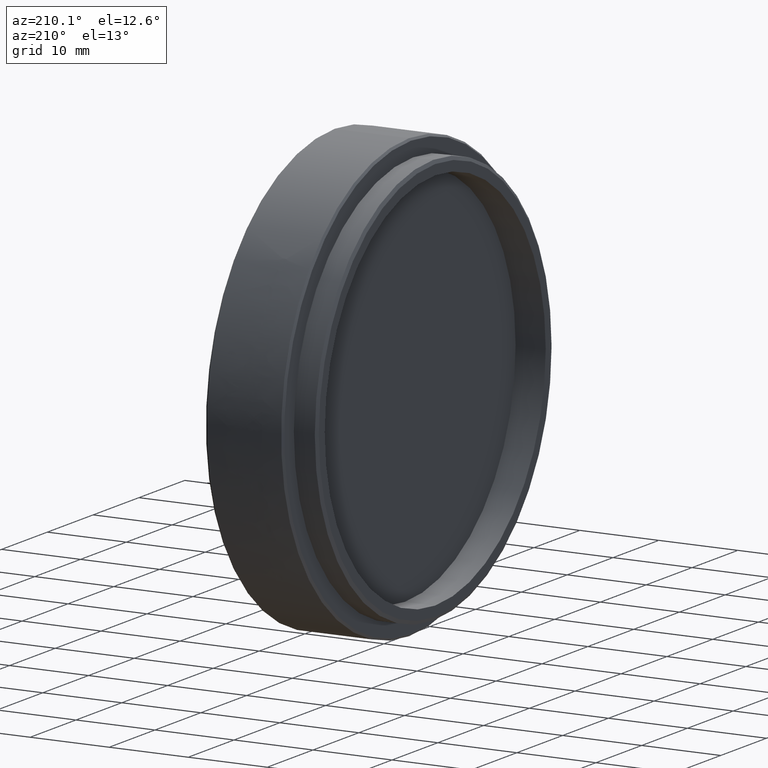
[diagram: clean part render]
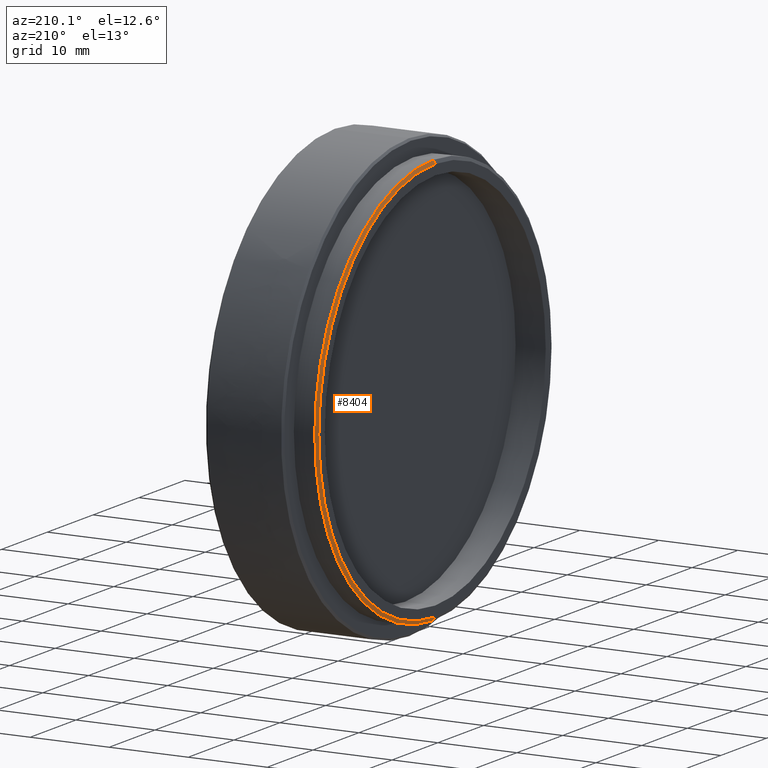
[diagram: same view with one face highlighted and labeled with its STEP entity id]
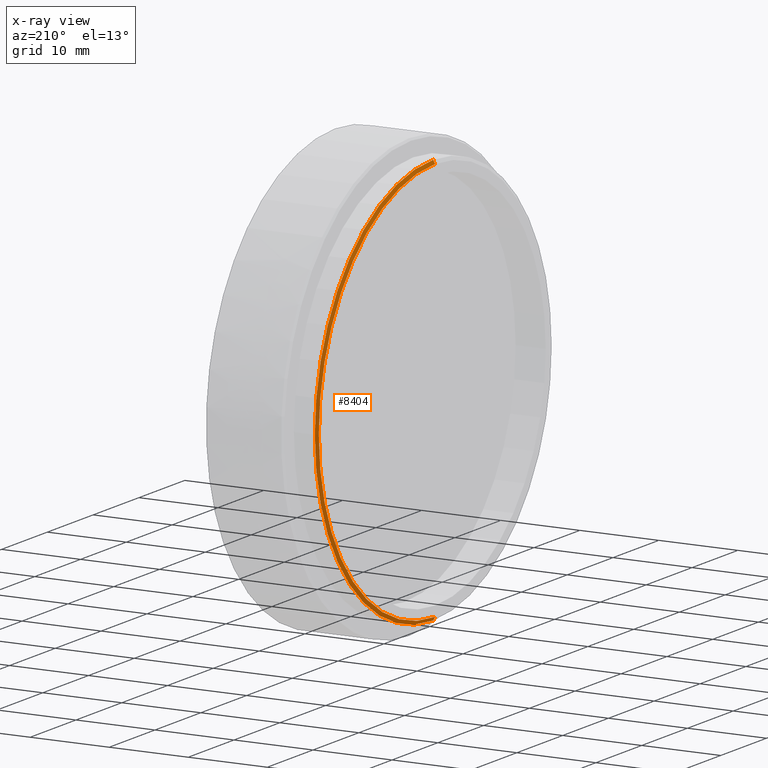
[diagram: x-ray of the same camera — body ghosted, the highlighted face saturated]
A machine part, auxiliary view. The second image highlights one B-rep face of the part: STEP entity #8404.
The next image is the same camera in x-ray: the body ghosted, the highlighted face saturated — about 0% of this face is hidden behind the body in this view.
In plain terms, the highlighted conical surface has half-angle 60 deg.
Its self-contained STEP definition (entity closure, byte-faithful):
#129 = DIRECTION ( 'NONE',  ( 1.000000000000000000, 0.0000000000000000000, 0.0000000000000000000 ) ) ;
#480 = ORIENTED_EDGE ( 'NONE', *, *, #9096, .F. ) ;
#1105 = ORIENTED_EDGE ( 'NONE', *, *, #7699, .F. ) ;
#1198 = VERTEX_POINT ( 'NONE', #4840 ) ;
#1271 = CARTESIAN_POINT ( 'NONE',  ( -6.477000000000000300, 0.0000000000000000000, 0.0000000000000000000 ) ) ;
#1680 = CARTESIAN_POINT ( 'NONE',  ( -6.222999999999996300, 3.165038420056376900E-015, -25.84450000000000000 ) ) ;
#1784 = DIRECTION ( 'NONE',  ( 1.000000000000000000, 0.0000000000000000000, 0.0000000000000000000 ) ) ;
#1996 = DIRECTION ( 'NONE',  ( 0.0000000000000000000, 0.0000000000000000000, -1.000000000000000000 ) ) ;
#2441 = AXIS2_PLACEMENT_3D ( 'NONE', #6736, #129, #6801 ) ;
#2446 = CARTESIAN_POINT ( 'NONE',  ( -6.477000000000000300, 0.0000000000000000000, -25.40455909487750200 ) ) ;
#2600 = CARTESIAN_POINT ( 'NONE',  ( -6.222999999999996300, 0.0000000000000000000, 25.84450000000000000 ) ) ;
#2621 = ORIENTED_EDGE ( 'NONE', *, *, #4770, .T. ) ;
#2718 = CONICAL_SURFACE ( 'NONE', #2441, 25.40455909487750200, 1.047197551196593200 ) ;
#2881 = VECTOR ( 'NONE', #5340, 1000.000000000000100 ) ;
#2919 = FACE_OUTER_BOUND ( 'NONE', #9234, .T. ) ;
#3733 = ORIENTED_EDGE ( 'NONE', *, *, #8115, .F. ) ;
#3855 = VERTEX_POINT ( 'NONE', #1680 ) ;
#3865 = CARTESIAN_POINT ( 'NONE',  ( -6.477000000000000300, 3.111161197929151400E-015, 25.40455909487750200 ) ) ;
#4103 = DIRECTION ( 'NONE',  ( 0.5000000000000038900, 0.0000000000000000000, -0.8660254037844363800 ) ) ;
#4370 = LINE ( 'NONE', #3865, #2881 ) ;
#4526 = CIRCLE ( 'NONE', #5123, 25.84450000000000000 ) ;
#4537 = LINE ( 'NONE', #5376, #6708 ) ;
#4770 = EDGE_CURVE ( 'NONE', #1198, #7657, #4370, .T. ) ;
#4840 = CARTESIAN_POINT ( 'NONE',  ( -6.477000000000000300, 3.138099808992764100E-015, 25.40455909487750200 ) ) ;
#4921 = VERTEX_POINT ( 'NONE', #2446 ) ;
#5123 = AXIS2_PLACEMENT_3D ( 'NONE', #6191, #1784, #6912 ) ;
#5340 = DIRECTION ( 'NONE',  ( 0.5000000000000038900, 1.060575238724904100E-016, 0.8660254037844363800 ) ) ;
#5376 = CARTESIAN_POINT ( 'NONE',  ( -6.477000000000000300, 0.0000000000000000000, -25.40455909487750200 ) ) ;
#6191 = CARTESIAN_POINT ( 'NONE',  ( -6.222999999999996300, 0.0000000000000000000, 0.0000000000000000000 ) ) ;
#6389 = DIRECTION ( 'NONE',  ( -1.000000000000000000, -0.0000000000000000000, -0.0000000000000000000 ) ) ;
#6708 = VECTOR ( 'NONE', #4103, 1000.000000000000100 ) ;
#6736 = CARTESIAN_POINT ( 'NONE',  ( -6.477000000000000300, 0.0000000000000000000, 0.0000000000000000000 ) ) ;
#6801 = DIRECTION ( 'NONE',  ( 0.0000000000000000000, 0.0000000000000000000, -1.000000000000000000 ) ) ;
#6912 = DIRECTION ( 'NONE',  ( 0.0000000000000000000, 0.0000000000000000000, -1.000000000000000000 ) ) ;
#7627 = CIRCLE ( 'NONE', #7724, 25.40455909487750200 ) ;
#7657 = VERTEX_POINT ( 'NONE', #2600 ) ;
#7699 = EDGE_CURVE ( 'NONE', #1198, #4921, #7627, .T. ) ;
#7724 = AXIS2_PLACEMENT_3D ( 'NONE', #1271, #6389, #1996 ) ;
#8115 = EDGE_CURVE ( 'NONE', #4921, #3855, #4537, .T. ) ;
#8404 = ADVANCED_FACE ( 'NONE', ( #2919 ), #2718, .T. ) ;
#9096 = EDGE_CURVE ( 'NONE', #3855, #7657, #4526, .T. ) ;
#9234 = EDGE_LOOP ( 'NONE', ( #1105, #2621, #480, #3733 ) ) ;